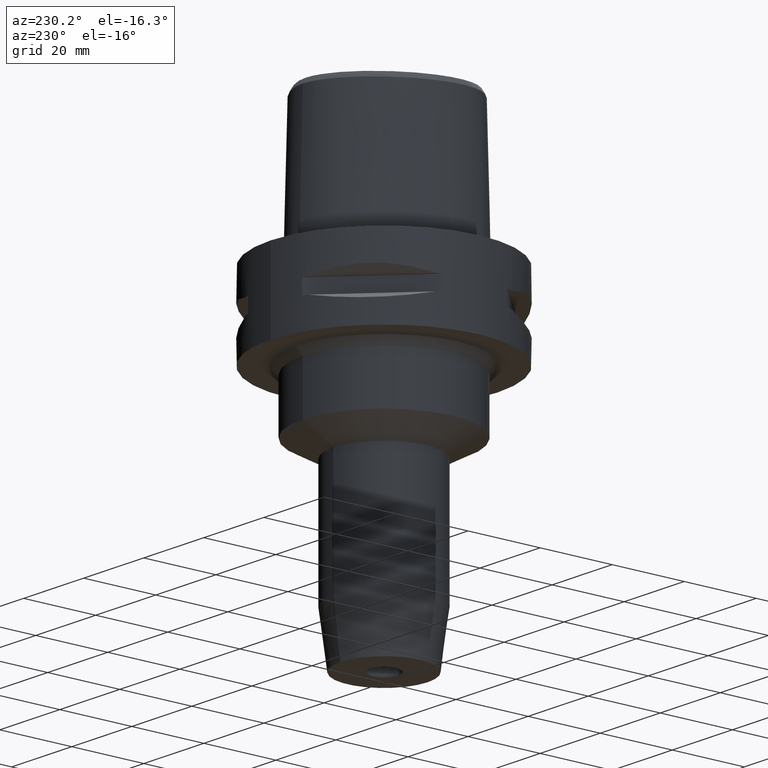
[diagram: clean part render]
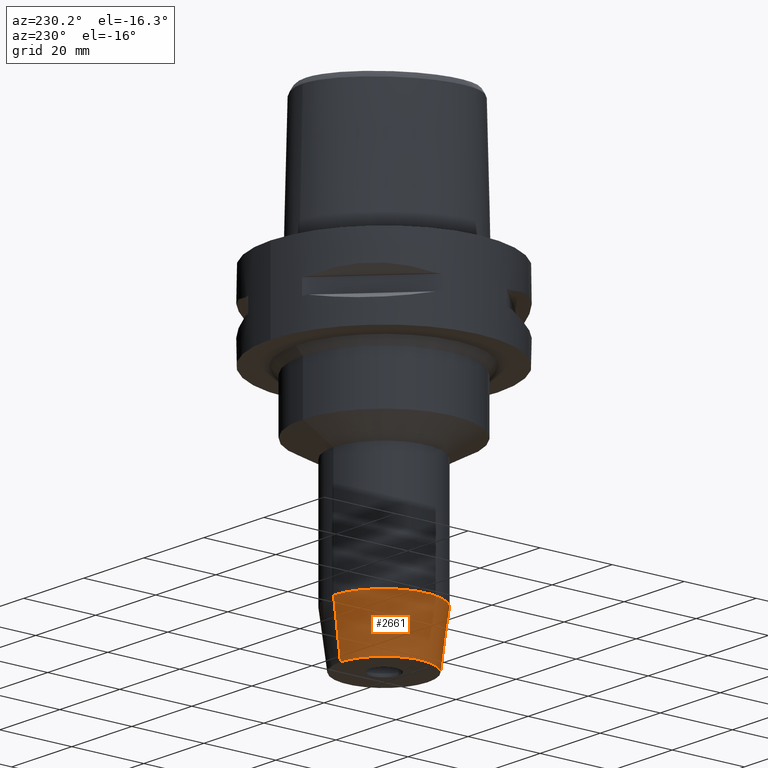
[diagram: same view with one face highlighted and labeled with its STEP entity id]
A machine part, auxiliary view. The second image highlights one B-rep face of the part: STEP entity #2661.
In plain terms, the highlighted conical surface has half-angle 7.5 deg.
Its self-contained STEP definition (entity closure, byte-faithful):
#644=CARTESIAN_POINT('',(0.E0,0.E0,-7.553768416937E1));
#645=DIRECTION('',(0.E0,0.E0,1.E0));
#646=DIRECTION('',(0.E0,1.E0,0.E0));
#647=AXIS2_PLACEMENT_3D('',#644,#645,#646);
#652=DIRECTION('',(0.E0,1.305261922200E-1,-9.914448613738E-1));
#653=VECTOR('',#652,1.458711058383E1);
#654=CARTESIAN_POINT('',(0.E0,-1.4E1,-7.553768416937E1));
#655=LINE('',#654,#653);
#659=DIRECTION('',(0.E0,-1.305261922200E-1,-9.914448613738E-1));
#660=VECTOR('',#659,1.458711058383E1);
#661=CARTESIAN_POINT('',(0.E0,1.4E1,-7.553768416937E1));
#662=LINE('',#661,#660);
#682=CARTESIAN_POINT('',(0.E0,0.E0,-9.E1));
#683=DIRECTION('',(0.E0,0.E0,1.E0));
#684=DIRECTION('',(0.E0,1.E0,0.E0));
#685=AXIS2_PLACEMENT_3D('',#682,#683,#684);
#1652=CARTESIAN_POINT('',(0.E0,1.4E1,-7.553768416937E1));
#1653=VERTEX_POINT('',#1652);
#1654=CARTESIAN_POINT('',(0.E0,-1.4E1,-7.553768416937E1));
#1655=VERTEX_POINT('',#1654);
#1656=CARTESIAN_POINT('',(0.E0,1.2096E1,-9.E1));
#1657=VERTEX_POINT('',#1656);
#1658=CARTESIAN_POINT('',(0.E0,-1.2096E1,-9.E1));
#1659=VERTEX_POINT('',#1658);
#2647=CARTESIAN_POINT('',(0.E0,0.E0,-8.276884208469E1));
#2648=DIRECTION('',(0.E0,0.E0,1.E0));
#2649=DIRECTION('',(0.E0,1.E0,0.E0));
#2650=AXIS2_PLACEMENT_3D('',#2647,#2648,#2649);
#2651=CONICAL_SURFACE('',#2650,1.3048E1,7.5E0);
#2653=ORIENTED_EDGE('',*,*,#2652,.F.);
#2654=ORIENTED_EDGE('',*,*,#2642,.T.);
#2656=ORIENTED_EDGE('',*,*,#2655,.T.);
#2658=ORIENTED_EDGE('',*,*,#2657,.F.);
#2659=EDGE_LOOP('',(#2653,#2654,#2656,#2658));
#2660=FACE_OUTER_BOUND('',#2659,.F.);
#648=CIRCLE('',#647,1.4E1);
#686=CIRCLE('',#685,1.2096E1);
#2642=EDGE_CURVE('',#1653,#1655,#648,.T.);
#2652=EDGE_CURVE('',#1653,#1657,#662,.T.);
#2655=EDGE_CURVE('',#1655,#1659,#655,.T.);
#2657=EDGE_CURVE('',#1657,#1659,#686,.T.);
#2661=ADVANCED_FACE('',(#2660),#2651,.T.);